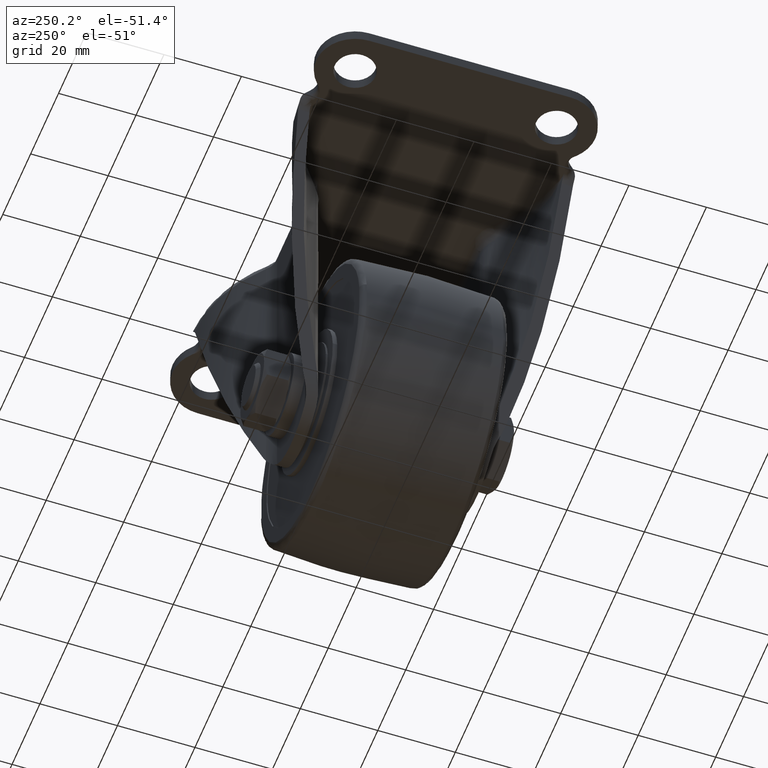
[diagram: clean part render]
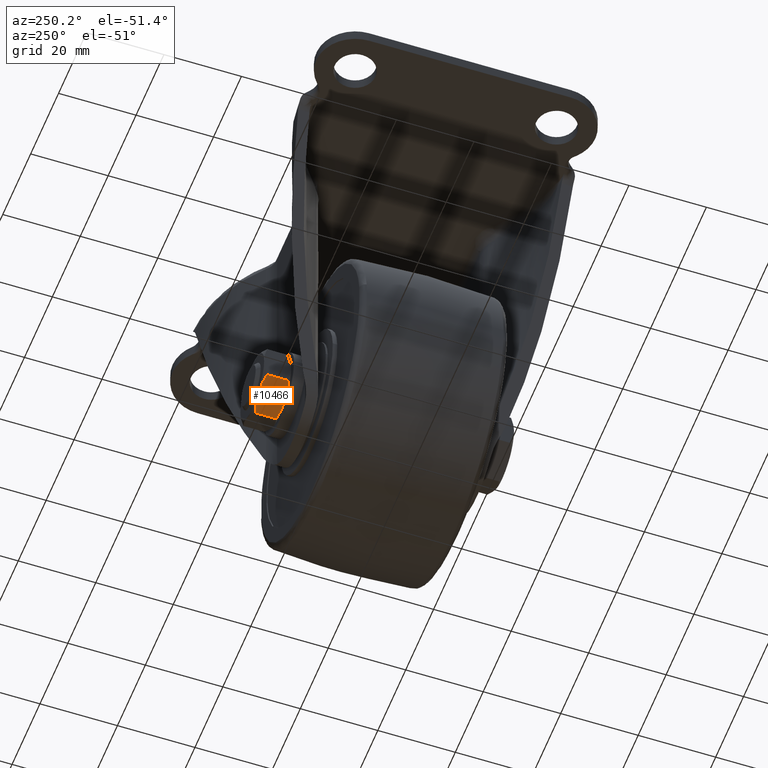
[diagram: same view with one face highlighted and labeled with its STEP entity id]
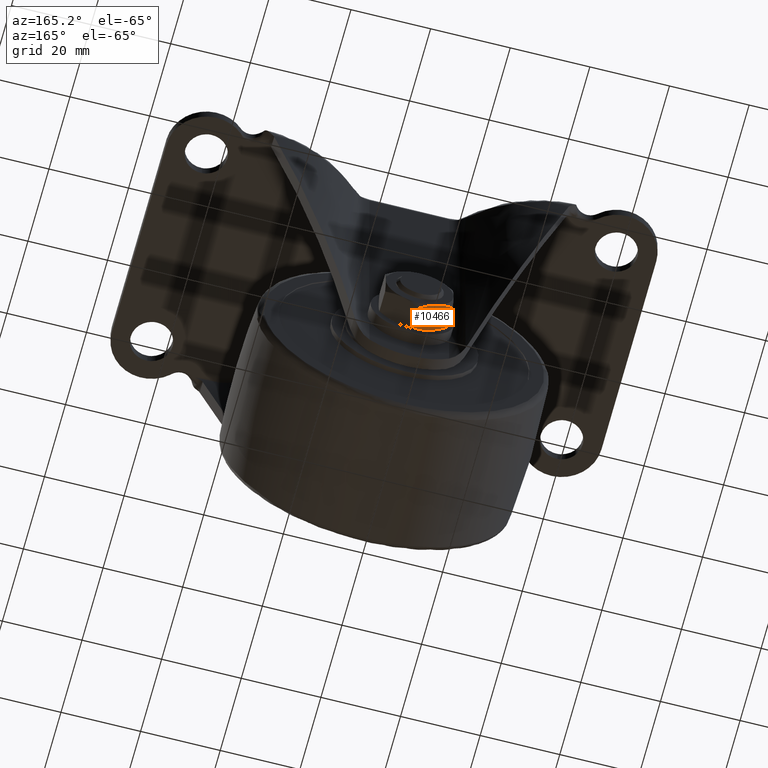
[diagram: same view with one face highlighted and labeled with its STEP entity id]
A machine part, auxiliary view. The second image highlights one B-rep face of the part: STEP entity #10466.
A second angle (auxiliary view) of the same face is appended — the face is thin or edge-on in the first view.
In plain terms, the highlighted face is a freeform B-spline surface patch.
Its self-contained STEP definition (entity closure, byte-faithful):
#9901=CARTESIAN_POINT('',(-4.250000491757235,27.0,-75.861215716083706));
#9902=VERTEX_POINT('',#9901);
#9903=CARTESIAN_POINT('',(-8.500000000000000,27.759188672162100,-73.407476999999901));
#9904=VERTEX_POINT('',#9903);
#9905=CARTESIAN_POINT('',(-4.250000491757235,27.0,-75.861215716083706));
#9906=CARTESIAN_POINT('',(-4.427983846654010,27.000001028779572,-75.758456963316419));
#9907=CARTESIAN_POINT('',(-4.606830303807714,27.004335859875439,-75.655199898156468));
#9908=CARTESIAN_POINT('',(-4.965632916047751,27.021670900990699,-75.448045083343445));
#9909=CARTESIAN_POINT('',(-5.145760384202917,27.034781731435320,-75.344048426029659));
#9910=CARTESIAN_POINT('',(-5.684340293986833,27.086679479135199,-75.033099125028869));
#9911=CARTESIAN_POINT('',(-6.040986026816182,27.138061029526099,-74.827189585304893));
#9912=CARTESIAN_POINT('',(-7.104573645659622,27.336468832688439,-74.213126898181770));
#9913=CARTESIAN_POINT('',(-7.805190693093541,27.527585766584270,-73.808625398569177));
#9914=CARTESIAN_POINT('',(-8.500000000000032,27.759188672161859,-73.407476999999886));
#9915=B_SPLINE_CURVE_WITH_KNOTS('',3,(#9905,#9906,#9907,#9908,#9909,#9910,#9911,#9912,#9913,#9914),.UNSPECIFIED.,.F.,.U.,(4,2,2,2,4),(0.500936467220917,0.562499999999994,0.624999999999994,0.749999999999996,1.0),.UNSPECIFIED.);
#9916=EDGE_CURVE('',#9902,#9904,#9915,.T.);
#10015=CARTESIAN_POINT('',(-4.250000491757235,33.999999966083749,-75.861215716083706));
#10016=VERTEX_POINT('',#10015);
#10111=CARTESIAN_POINT('',(0.0,33.240811000000001,-78.314955000000012));
#10112=VERTEX_POINT('',#10111);
#10113=CARTESIAN_POINT('',(-4.250000491757235,33.999999966083749,-75.861215716083706));
#10114=CARTESIAN_POINT('',(-4.072016803984167,33.999998971338513,-75.963974661037270));
#10115=CARTESIAN_POINT('',(-3.893170008097228,33.995664123777118,-76.067231921765028));
#10116=CARTESIAN_POINT('',(-3.534367061228233,33.978329034048727,-76.274386929776199));
#10117=CARTESIAN_POINT('',(-3.354239593439932,33.965218187474512,-76.378383586878144));
#10118=CARTESIAN_POINT('',(-2.815659685241613,33.913320392419159,-76.689332886963470));
#10119=CARTESIAN_POINT('',(-2.459013954112552,33.861938811870033,-76.895242425705803));
#10120=CARTESIAN_POINT('',(-1.395426341682778,33.663530924631118,-77.509305109125989));
#10121=CARTESIAN_POINT('',(-0.694809300218892,33.472413943546059,-77.913806605291796));
#10122=CARTESIAN_POINT('',(5.723431E-014,33.240811000000413,-78.314955000000040));
#10123=B_SPLINE_CURVE_WITH_KNOTS('',3,(#10113,#10114,#10115,#10116,#10117,#10118,#10119,#10120,#10121,#10122),.UNSPECIFIED.,.F.,.U.,(4,2,2,2,4),(0.500936351395149,0.562500000000001,0.625000000000000,0.750000000000001,1.0),.UNSPECIFIED.);
#10124=EDGE_CURVE('',#10016,#10112,#10123,.T.);
#10157=CARTESIAN_POINT('',(-8.500000000000000,33.240811000000001,-73.407476999999901));
#10158=VERTEX_POINT('',#10157);
#10173=CARTESIAN_POINT('',(-8.500000000000000,33.240811000000001,-73.407476999999901));
#10174=CARTESIAN_POINT('',(-7.806055747419888,33.472125883817363,-73.808125959148569));
#10175=CARTESIAN_POINT('',(-7.107051997390870,33.662771013914551,-74.211696020935008));
#10176=CARTESIAN_POINT('',(-6.047612635927552,33.860850065588373,-74.823363710195650));
#10177=CARTESIAN_POINT('',(-5.692639522589987,33.912193180624357,-75.028307562465727));
#10178=CARTESIAN_POINT('',(-4.978559177429691,33.981648129854797,-75.440582101772421));
#10179=CARTESIAN_POINT('',(-4.619448373270183,33.999731248537763,-75.647914851298893));
#10180=CARTESIAN_POINT('',(-4.255414372266304,33.999998970586290,-75.858090010261051));
#10181=CARTESIAN_POINT('',(-4.252707531771956,33.999999958347900,-75.859652805575806));
#10182=CARTESIAN_POINT('',(-4.250000491616080,33.999999943560951,-75.861215716165219));
#10183=B_SPLINE_CURVE_WITH_KNOTS('',3,(#10173,#10174,#10175,#10176,#10177,#10178,#10179,#10180,#10181,#10182),.UNSPECIFIED.,.F.,.U.,(4,2,2,2,4),(0.0,0.250000000000001,0.375000000000001,0.500000000000002,0.500936351366610),.UNSPECIFIED.);
#10184=EDGE_CURVE('',#10158,#10016,#10183,.T.);
#10346=CARTESIAN_POINT('',(0.0,27.759188999999999,-78.314955000000012));
#10347=VERTEX_POINT('',#10346);
#10361=CARTESIAN_POINT('',(0.0,27.759188999999999,-78.314955000000012));
#10362=CARTESIAN_POINT('',(0.0,33.240811000000001,-78.314955000000012));
#10363=QUASI_UNIFORM_CURVE('',1,(#10361,#10362),.UNSPECIFIED.,.F.,.U.);
#10364=EDGE_CURVE('',#10347,#10112,#10363,.T.);
#10430=CARTESIAN_POINT('',(-8.500000000000000,27.759188672162100,-73.407476999999901));
#10431=CARTESIAN_POINT('',(-8.500000000000000,33.240811000000001,-73.407476999999901));
#10432=QUASI_UNIFORM_CURVE('',1,(#10430,#10431),.UNSPECIFIED.,.F.,.U.);
#10433=EDGE_CURVE('',#9904,#10158,#10432,.T.);
#10441=CARTESIAN_POINT('',(0.424574983525353,26.650350015261470,-78.560083516588378));
#10442=CARTESIAN_POINT('',(-8.924575211513117,26.650350015261470,-73.162348351782711));
#10443=CARTESIAN_POINT('',(0.424574983525353,34.349650138576912,-78.560083516588378));
#10444=CARTESIAN_POINT('',(-8.924575211513117,34.349650138576912,-73.162348351782711));
#10445=B_SPLINE_SURFACE_WITH_KNOTS('',1,1,((#10441,#10443),(#10442,#10444)),.UNSPECIFIED.,.F.,.F.,.U.,(2,2),(2,2),(0.0,10.795469155102410),(0.0,7.699300123315432),.UNSPECIFIED.);
#10446=ORIENTED_EDGE('',*,*,#10184,.T.);
#10447=ORIENTED_EDGE('',*,*,#10124,.T.);
#10448=ORIENTED_EDGE('',*,*,#10364,.F.);
#10449=CARTESIAN_POINT('',(0.0,27.759188999999999,-78.314955000000012));
#10450=CARTESIAN_POINT('',(-0.693944278577208,27.527874396806151,-77.914306025841896));
#10451=CARTESIAN_POINT('',(-1.392948016332008,27.337229222855150,-77.510735971141983));
#10452=CARTESIAN_POINT('',(-2.452387362112172,27.139150090935939,-76.899068290936043));
#10453=CARTESIAN_POINT('',(-2.807360470688650,27.087806946822081,-76.694124441414758));
#10454=CARTESIAN_POINT('',(-3.521440807627265,27.018351936128710,-76.281849906854916));
#10455=CARTESIAN_POINT('',(-3.880551608328862,27.000268785070269,-76.074517159324856));
#10456=CARTESIAN_POINT('',(-4.244585941519948,27.000001029659920,-75.864341808574267));
#10457=CARTESIAN_POINT('',(-4.247293116853953,27.000000041653909,-75.862778819939706));
#10458=CARTESIAN_POINT('',(-4.250000491898280,27.000000056444421,-75.861215716002320));
#10459=B_SPLINE_CURVE_WITH_KNOTS('',3,(#10449,#10450,#10451,#10452,#10453,#10454,#10455,#10456,#10457,#10458),.UNSPECIFIED.,.F.,.U.,(4,2,2,2,4),(0.0,0.249999999999998,0.374999999999996,0.499999999999994,0.500936467192379),.UNSPECIFIED.);
#10460=EDGE_CURVE('',#10347,#9902,#10459,.T.);
#10461=ORIENTED_EDGE('',*,*,#10460,.T.);
#10462=ORIENTED_EDGE('',*,*,#9916,.T.);
#10463=ORIENTED_EDGE('',*,*,#10433,.T.);
#10464=EDGE_LOOP('',(#10446,#10447,#10448,#10461,#10462,#10463));
#10465=FACE_OUTER_BOUND('',#10464,.T.);
#10466=ADVANCED_FACE('',(#10465),#10445,.T.);